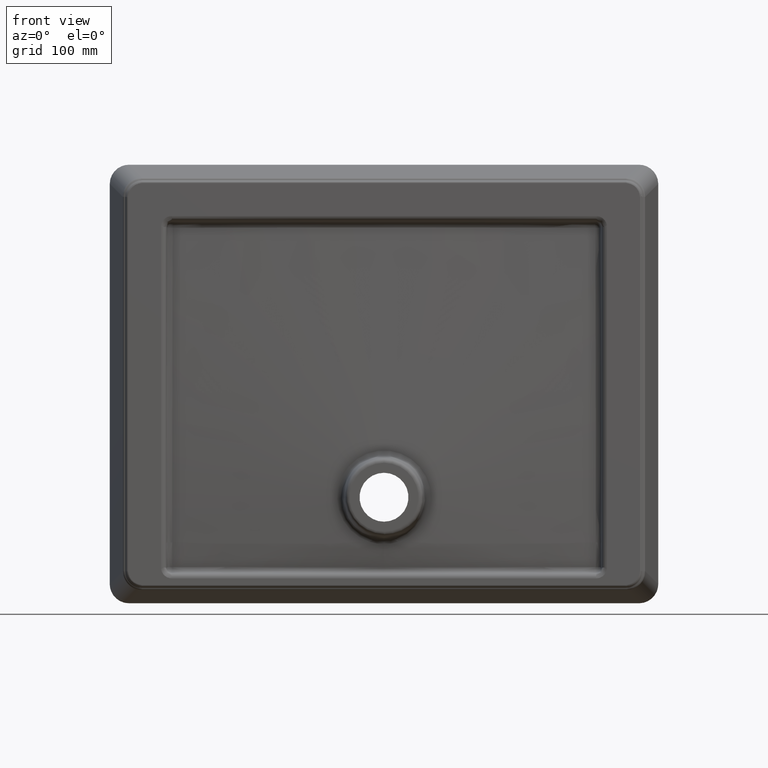
[diagram: clean part render]
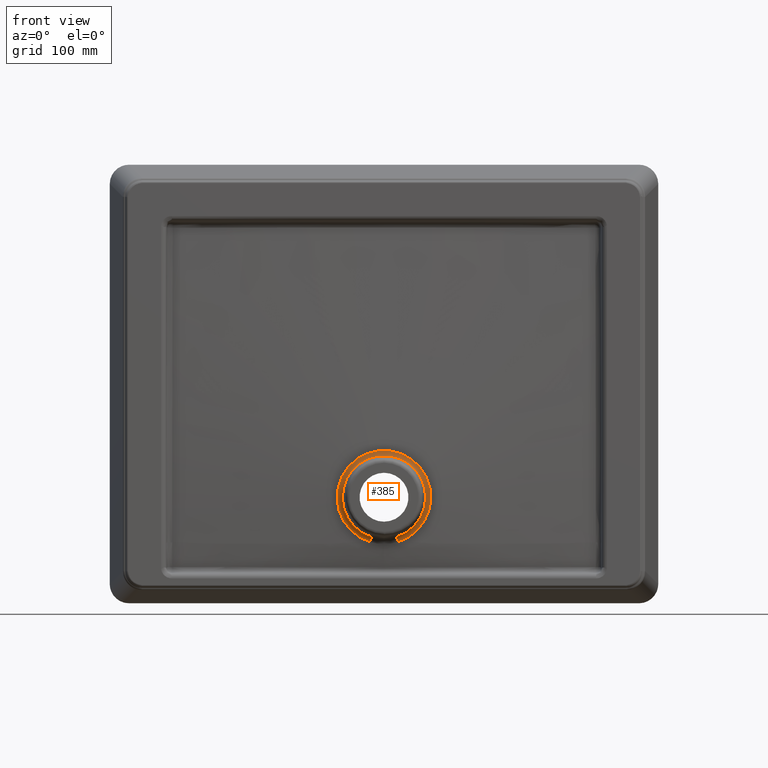
[diagram: same view with one face highlighted and labeled with its STEP entity id]
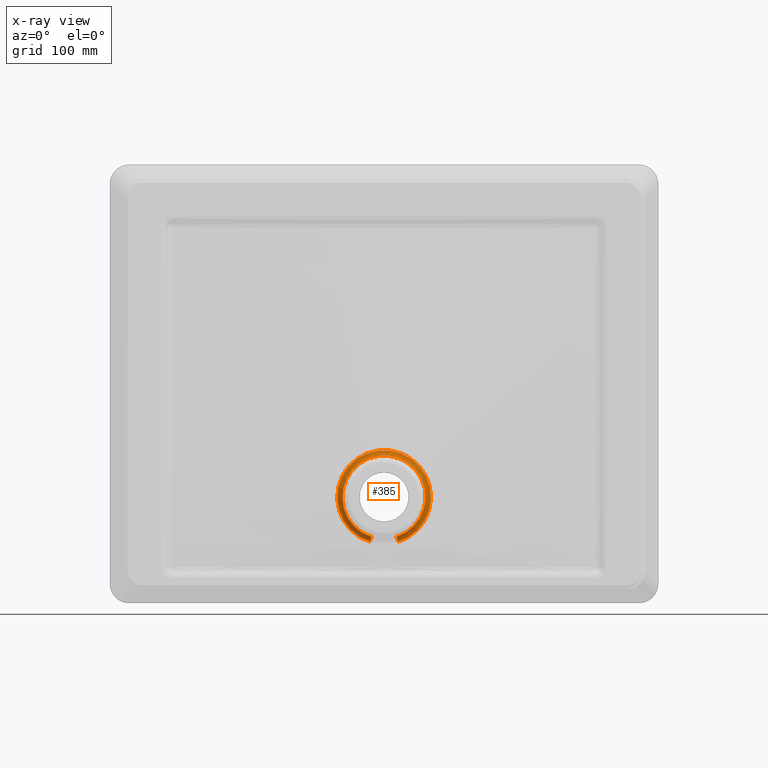
[diagram: x-ray of the same camera — body ghosted, the highlighted face saturated]
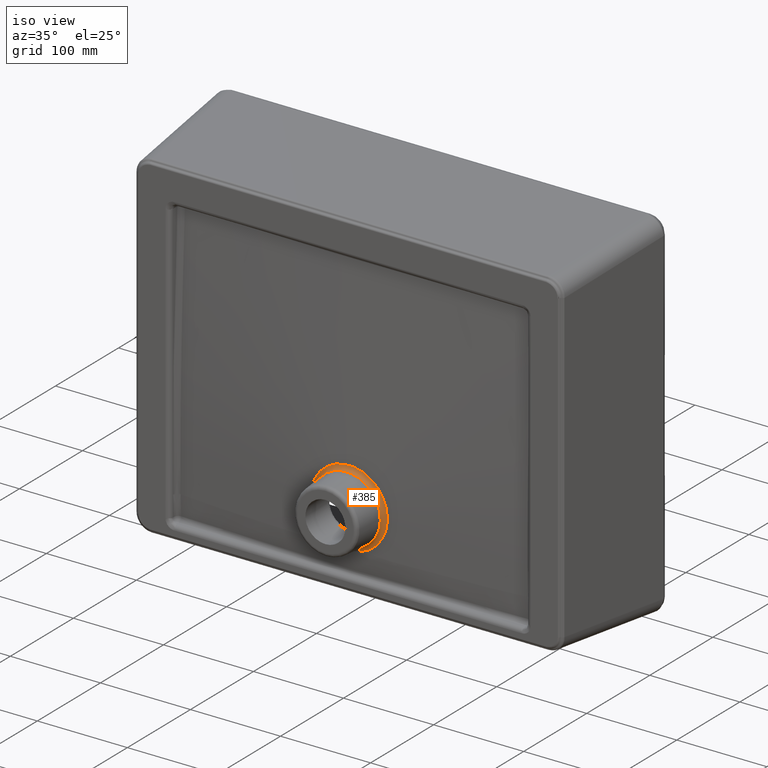
[diagram: same view with one face highlighted and labeled with its STEP entity id]
A machine part, front view. The second image highlights one B-rep face of the part: STEP entity #385.
The next image is the same camera in x-ray: the body ghosted, the highlighted face saturated — about 0% of this face is hidden behind the body in this view.
A second angle (iso view) of the same face is appended — the face is thin or edge-on in the first view.
In plain terms, the highlighted toroidal blend (fillet) surface has major radius 42.8674 mm and minor (blend) radius 5 mm.
Its self-contained STEP definition (entity closure, byte-faithful):
#194=TOROIDAL_SURFACE('',#2117,42.8674295678971,5.);
#299=CIRCLE('',#2098,37.8864560774383);
#301=CIRCLE('',#2104,42.6057497866824);
#385=ADVANCED_FACE('',(#532),#194,.F.);
#532=FACE_OUTER_BOUND('',#673,.T.);
#673=EDGE_LOOP('',(#1085,#1086,#1087,#1088));
#860=B_SPLINE_CURVE_WITH_KNOTS('',3,(#3694,#3695,#3696,#3697,#3698,#3699),
 .UNSPECIFIED.,.F.,.F.,(4,2,4),(0.,0.5,1.),.UNSPECIFIED.);
#861=B_SPLINE_CURVE_WITH_KNOTS('',3,(#3700,#3701,#3702,#3703,#3704,#3705),
 .UNSPECIFIED.,.F.,.F.,(4,2,4),(0.,0.5,1.),.UNSPECIFIED.);
#1085=ORIENTED_EDGE('',*,*,#1791,.F.);
#1086=ORIENTED_EDGE('',*,*,#1868,.T.);
#1087=ORIENTED_EDGE('',*,*,#1834,.F.);
#1088=ORIENTED_EDGE('',*,*,#1869,.F.);
#1615=VERTEX_POINT('',#2541);
#1616=VERTEX_POINT('',#2542);
#1658=VERTEX_POINT('',#3301);
#1659=VERTEX_POINT('',#3303);
#1791=EDGE_CURVE('',#1615,#1616,#299,.T.);
#1834=EDGE_CURVE('',#1658,#1659,#301,.T.);
#1868=EDGE_CURVE('',#1615,#1659,#860,.T.);
#1869=EDGE_CURVE('',#1616,#1658,#861,.T.);
#2098=AXIS2_PLACEMENT_3D('',#2540,#2210,#2211);
#2104=AXIS2_PLACEMENT_3D('',#3302,#2229,#2230);
#2117=AXIS2_PLACEMENT_3D('',#3706,#2261,#2262);
#2210=DIRECTION('',(0.,-1.,0.));
#2211=DIRECTION('',(0.,0.,1.));
#2229=DIRECTION('',(0.,1.,0.));
#2230=DIRECTION('',(0.,0.,1.));
#2261=DIRECTION('',(0.,1.,0.));
#2262=DIRECTION('',(0.,0.,1.));
#2540=CARTESIAN_POINT('',(0.,-153.007656065248,97.));
#2541=CARTESIAN_POINT('',(11.3501560282433,-153.007656065248,60.8536653000308));
#2542=CARTESIAN_POINT('',(-11.3501560282433,-153.007656065248,60.8536653000308));
#3301=CARTESIAN_POINT('',(-12.7641846461813,-148.449136125179,56.3514457522441));
#3302=CARTESIAN_POINT('',(0.,-148.450287105213,97.));
#3303=CARTESIAN_POINT('',(12.7641846461813,-148.449136125179,56.3514457522441));
#3694=CARTESIAN_POINT('',(11.3501560282433,-153.007656065248,60.8536653000308));
#3695=CARTESIAN_POINT('',(11.3812956173655,-151.819582735411,60.754496442085));
#3696=CARTESIAN_POINT('',(11.544807005355,-150.675271557918,60.2337690315702));
#3697=CARTESIAN_POINT('',(12.0588191571017,-149.018325363877,58.5968175015071));
#3698=CARTESIAN_POINT('',(12.4071280357842,-148.512756008366,57.4875737804075));
#3699=CARTESIAN_POINT('',(12.7639244277747,-148.450296553614,56.3513002549565));
#3700=CARTESIAN_POINT('',(-11.3502169926863,-153.005318402018,60.8534700784286));
#3701=CARTESIAN_POINT('',(-11.3812953084042,-151.817299300789,60.7542869530717));
#3702=CARTESIAN_POINT('',(-11.5447347014719,-150.673037552655,60.2335856885423));
#3703=CARTESIAN_POINT('',(-12.0586844209588,-149.016110952961,58.5967533971685));
#3704=CARTESIAN_POINT('',(-12.4070047577871,-148.510510402948,57.4876013899007));
#3705=CARTESIAN_POINT('',(-12.7638876520604,-148.447975965762,56.3514163184784));
#3706=CARTESIAN_POINT('',(0.,-153.443434778986,97.));